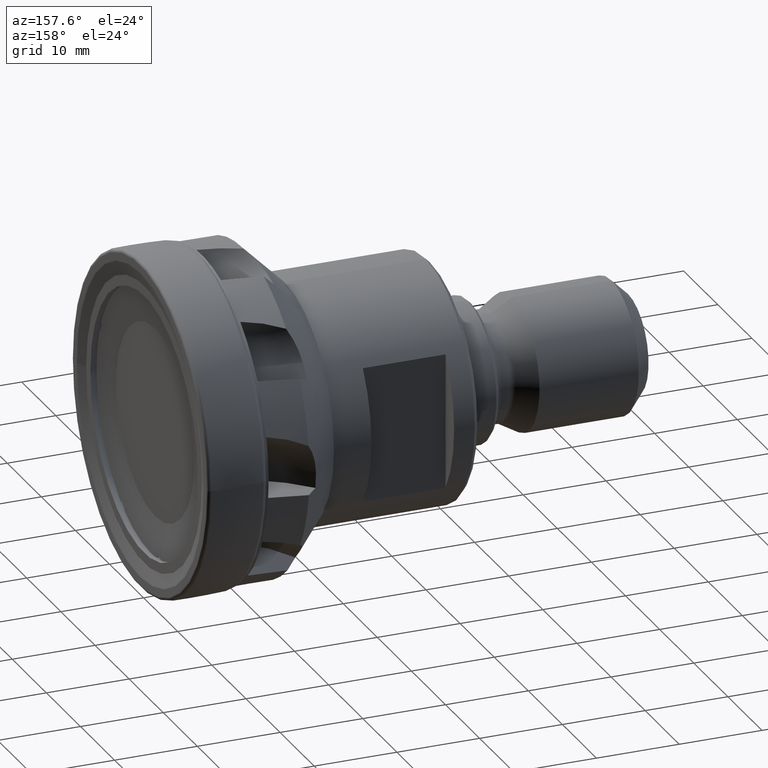
[diagram: clean part render]
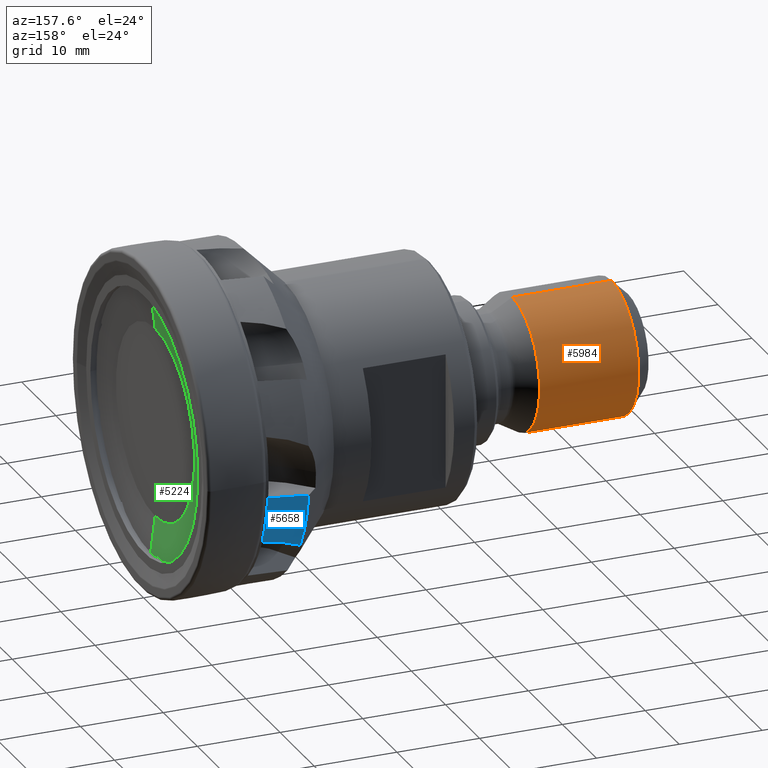
[diagram: same view with three faces highlighted in distinct colors, each labeled with its STEP entity id]
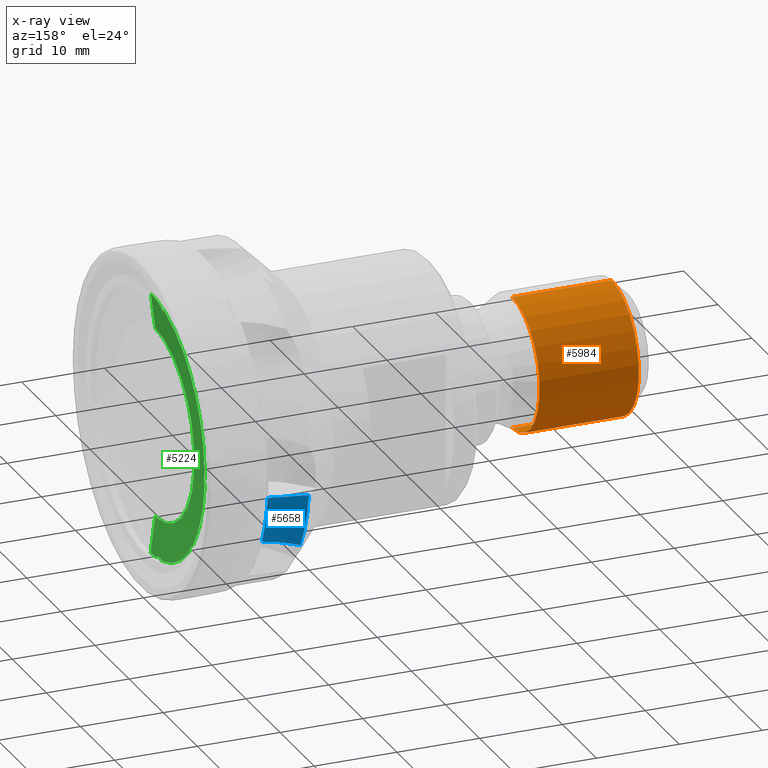
[diagram: x-ray of the same camera — body ghosted, the three highlighted faces saturated]
A machine part, auxiliary view with three faces highlighted in distinct colors.
The next image is the same camera in x-ray (body ghosted, the three faces saturated) — at least one of them is partly hidden behind the body in this view.
Their STEP definitions:

[orange] entity #5984 — the highlighted cylindrical surface (partial cylindrical patch) has radius 8 mm, axis along (1, -0, -0).
#39 = ORIENTED_EDGE ( 'NONE', *, *, #8100, .T. ) ;
#40 = ORIENTED_EDGE ( 'NONE', *, *, #8101, .T. ) ;
#41 = ORIENTED_EDGE ( 'NONE', *, *, #8098, .F. ) ;
#160 = CARTESIAN_POINT ( 'NONE',  ( -44.54999999999999700, 0.0000000000000000000, -7.999999998540237000 ) ) ;
#161 = CARTESIAN_POINT ( 'NONE',  ( -56.54999999999999700, 9.797174391391132700E-016, 7.999999998540237000 ) ) ;
#164 = CARTESIAN_POINT ( 'NONE',  ( -56.54999999999999700, 0.0000000000000000000, -7.999999998540237000 ) ) ;
#165 = CARTESIAN_POINT ( 'NONE',  ( -44.54999999999999700, 9.797174391391132700E-016, 7.999999998540237000 ) ) ;
#1861 = VERTEX_POINT ( 'NONE', #160 ) ;
#1862 = VERTEX_POINT ( 'NONE', #161 ) ;
#1865 = VERTEX_POINT ( 'NONE', #164 ) ;
#1866 = VERTEX_POINT ( 'NONE', #165 ) ;
#2932 = DIRECTION ( 'NONE',  ( 1.000000000000000000, -0.0000000000000000000, -0.0000000000000000000 ) ) ;
#2933 = CYLINDRICAL_SURFACE ( 'NONE', #7241, 7.999999998540237000 ) ;
#2934 = FACE_OUTER_BOUND ( 'NONE', #8983, .T. ) ;
#2935 = CARTESIAN_POINT ( 'NONE',  ( 0.0000000000000000000, 0.0000000000000000000, 0.0000000000000000000 ) ) ;
#2937 = DIRECTION ( 'NONE',  ( 0.0000000000000000000, 0.0000000000000000000, -1.000000000000000000 ) ) ;
#3941 = CIRCLE ( 'NONE', #3947, 7.999999998540237000 ) ;
#3947 = AXIS2_PLACEMENT_3D ( 'NONE', #4701, #4702, #4703 ) ;
#3948 = CIRCLE ( 'NONE', #3950, 7.999999998540237000 ) ;
#3950 = AXIS2_PLACEMENT_3D ( 'NONE', #4708, #4709, #4711 ) ;
#4700 = CARTESIAN_POINT ( 'NONE',  ( 0.0000000000000000000, 9.797174391391132700E-016, 7.999999998540237000 ) ) ;
#4701 = CARTESIAN_POINT ( 'NONE',  ( -44.54999999999999700, 0.0000000000000000000, 0.0000000000000000000 ) ) ;
#4702 = DIRECTION ( 'NONE',  ( 1.000000000000000000, -0.0000000000000000000, -0.0000000000000000000 ) ) ;
#4703 = DIRECTION ( 'NONE',  ( 0.0000000000000000000, 0.0000000000000000000, -1.000000000000000000 ) ) ;
#4707 = LINE ( 'NONE', #4700, #5952 ) ;
#4708 = CARTESIAN_POINT ( 'NONE',  ( -56.54999999999999700, 0.0000000000000000000, 0.0000000000000000000 ) ) ;
#4709 = DIRECTION ( 'NONE',  ( 1.000000000000000000, -0.0000000000000000000, -0.0000000000000000000 ) ) ;
#4711 = DIRECTION ( 'NONE',  ( 0.0000000000000000000, 0.0000000000000000000, -1.000000000000000000 ) ) ;
#4712 = DIRECTION ( 'NONE',  ( 1.000000000000000000, -0.0000000000000000000, -0.0000000000000000000 ) ) ;
#4713 = LINE ( 'NONE', #4714, #5947 ) ;
#4714 = CARTESIAN_POINT ( 'NONE',  ( 0.0000000000000000000, 0.0000000000000000000, -7.999999998540237000 ) ) ;
#4715 = DIRECTION ( 'NONE',  ( 1.000000000000000000, -0.0000000000000000000, -0.0000000000000000000 ) ) ;
#5947 = VECTOR ( 'NONE', #4715, 1000.000000000000000 ) ;
#5952 = VECTOR ( 'NONE', #4712, 1000.000000000000000 ) ;
#5984 = ADVANCED_FACE ( 'NONE', ( #2934 ), #2933, .T. ) ;
#7241 = AXIS2_PLACEMENT_3D ( 'NONE', #2935, #2932, #2937 ) ;
#8098 = EDGE_CURVE ( 'NONE', #1861, #1866, #3941, .T. ) ;
#8100 = EDGE_CURVE ( 'NONE', #1865, #1862, #3948, .T. ) ;
#8101 = EDGE_CURVE ( 'NONE', #1862, #1866, #4707, .T. ) ;
#8102 = EDGE_CURVE ( 'NONE', #1865, #1861, #4713, .T. ) ;
#8623 = ORIENTED_EDGE ( 'NONE', *, *, #8102, .F. ) ;
#8983 = EDGE_LOOP ( 'NONE', ( #39, #40, #41, #8623 ) ) ;

[blue] entity #5658 — the highlighted cylindrical surface (partial cylindrical patch) has radius 19.5275 mm, axis along (1, -0, -0).
#204 = CARTESIAN_POINT ( 'NONE',  ( -12.00000000000000200, 19.33435153484029100, -2.739727537040651800 ) ) ;
#206 = CARTESIAN_POINT ( 'NONE',  ( -11.99999999998959400, 16.83266850269608400, -9.898713417851306300 ) ) ;
#883 = CARTESIAN_POINT ( 'NONE',  ( -7.050000000000013100, 19.40054256912274900, -2.223106896587761400 ) ) ;
#931 = CARTESIAN_POINT ( 'NONE',  ( -6.999999999999954700, 17.67985840495561300, -8.291312503501501400 ) ) ;
#1136 = CARTESIAN_POINT ( 'NONE',  ( -7.050000000000013100, 19.40054256912274900, -2.223106896587761400 ) ) ;
#1140 = CARTESIAN_POINT ( 'NONE',  ( -8.698913747250538000, 19.38077625956980300, -2.395602933780084600 ) ) ;
#1141 = CARTESIAN_POINT ( 'NONE',  ( -10.34901157662200400, 19.35871127330852900, -2.567820024167877200 ) ) ;
#1142 = CARTESIAN_POINT ( 'NONE',  ( -12.00000000000000200, 19.33435153484029100, -2.739727537040651800 ) ) ;
#1146 = CARTESIAN_POINT ( 'NONE',  ( -6.999999999999997300, 19.40114124255417800, -2.217876176990967600 ) ) ;
#1152 = CARTESIAN_POINT ( 'NONE',  ( -7.016666530350089900, 19.40094191978930400, -2.219619777086357300 ) ) ;
#1153 = CARTESIAN_POINT ( 'NONE',  ( -7.033333197117723800, 19.40074236197761700, -2.221363350295899600 ) ) ;
#1154 = CARTESIAN_POINT ( 'NONE',  ( -7.050000000000013100, 19.40054256912274900, -2.223106896587761400 ) ) ;
#1364 = CARTESIAN_POINT ( 'NONE',  ( 0.0000000000000000000, 0.0000000000000000000, 0.0000000000000000000 ) ) ;
#1367 = DIRECTION ( 'NONE',  ( 1.000000000000000000, -0.0000000000000000000, -0.0000000000000000000 ) ) ;
#1370 = CYLINDRICAL_SURFACE ( 'NONE', #8403, 19.52749999999999600 ) ;
#1371 = FACE_OUTER_BOUND ( 'NONE', #3816, .T. ) ;
#1373 = DIRECTION ( 'NONE',  ( 0.0000000000000000000, 0.0000000000000000000, -1.000000000000000000 ) ) ;
#1593 = CIRCLE ( 'NONE', #1605, 19.52750000000000000 ) ;
#1605 = AXIS2_PLACEMENT_3D ( 'NONE', #7448, #7449, #7450 ) ;
#1905 = VERTEX_POINT ( 'NONE', #204 ) ;
#1907 = VERTEX_POINT ( 'NONE', #206 ) ;
#2105 = B_SPLINE_CURVE_WITH_KNOTS ( 'NONE', 3,
 ( #2373, #2374, #2379, #2380, #2381, #2382 ),
 .UNSPECIFIED., .F., .F.,
 ( 4, 2, 4 ),
 ( 2.273743267091686200E-007, 0.002634870149394642600, 0.005269512924462576400 ),
 .UNSPECIFIED. ) ;
#2107 = B_SPLINE_CURVE_WITH_KNOTS ( 'NONE', 3,
 ( #2384, #2392, #2396, #2397 ),
 .UNSPECIFIED., .F., .F.,
 ( 4, 4 ),
 ( 0.005269512924462576400, 0.005320139820006037700 ),
 .UNSPECIFIED. ) ;
#2373 = CARTESIAN_POINT ( 'NONE',  ( -11.99999999998959400, 16.83266850269608400, -9.898713417851306300 ) ) ;
#2374 = CARTESIAN_POINT ( 'NONE',  ( -11.22751372642457000, 17.05877552016504600, -9.514220574112132000 ) ) ;
#2379 = CARTESIAN_POINT ( 'NONE',  ( -10.42143498719523000, 17.22545872719503300, -9.202900436373994400 ) ) ;
#2380 = CARTESIAN_POINT ( 'NONE',  ( -8.766433850728413200, 17.49487069839472400, -8.679821660066631100 ) ) ;
#2381 = CARTESIAN_POINT ( 'NONE',  ( -7.916995190072015000, 17.59639688681898000, -8.469035079851112300 ) ) ;
#2382 = CARTESIAN_POINT ( 'NONE',  ( -7.050000000000012300, 17.67533371417064800, -8.300953821260685900 ) ) ;
#2384 = CARTESIAN_POINT ( 'NONE',  ( -7.050000000000012300, 17.67533371417064800, -8.300953821260685900 ) ) ;
#2392 = CARTESIAN_POINT ( 'NONE',  ( -7.033339952064824100, 17.67685055225980400, -8.297723997315923600 ) ) ;
#2396 = CARTESIAN_POINT ( 'NONE',  ( -7.016673280310648400, 17.67835876778601200, -8.294510232788210800 ) ) ;
#2397 = CARTESIAN_POINT ( 'NONE',  ( -6.999999999999954700, 17.67985840495561300, -8.291312503501501400 ) ) ;
#2699 = CARTESIAN_POINT ( 'NONE',  ( -12.00000000000000200, 0.0000000000000000000, 0.0000000000000000000 ) ) ;
#2700 = DIRECTION ( 'NONE',  ( 1.000000000000000000, -0.0000000000000000000, -0.0000000000000000000 ) ) ;
#2701 = DIRECTION ( 'NONE',  ( 0.0000000000000000000, 0.0000000000000000000, -1.000000000000000000 ) ) ;
#3555 = ORIENTED_EDGE ( 'NONE', *, *, #5371, .F. ) ;
#3556 = ORIENTED_EDGE ( 'NONE', *, *, #5374, .F. ) ;
#3557 = ORIENTED_EDGE ( 'NONE', *, *, #5187, .F. ) ;
#3558 = ORIENTED_EDGE ( 'NONE', *, *, #5304, .F. ) ;
#3559 = ORIENTED_EDGE ( 'NONE', *, *, #5301, .F. ) ;
#3560 = ORIENTED_EDGE ( 'NONE', *, *, #5759, .T. ) ;
#3816 = EDGE_LOOP ( 'NONE', ( #3555, #3556, #3557, #3558, #3559, #3560 ) ) ;
#4105 = CARTESIAN_POINT ( 'NONE',  ( -7.050000000000012300, 17.67533371417064800, -8.300953821260685900 ) ) ;
#4178 = CARTESIAN_POINT ( 'NONE',  ( -6.999999999999997300, 19.40114124255417800, -2.217876176990967600 ) ) ;
#5187 = EDGE_CURVE ( 'NONE', #9041, #9151, #1593, .T. ) ;
#5301 = EDGE_CURVE ( 'NONE', #1907, #9078, #2105, .T. ) ;
#5304 = EDGE_CURVE ( 'NONE', #9078, #9041, #2107, .T. ) ;
#5371 = EDGE_CURVE ( 'NONE', #8934, #1905, #8059, .T. ) ;
#5374 = EDGE_CURVE ( 'NONE', #9151, #8934, #8049, .T. ) ;
#5658 = ADVANCED_FACE ( 'NONE', ( #1371 ), #1370, .T. ) ;
#5759 = EDGE_CURVE ( 'NONE', #1907, #1905, #7081, .T. ) ;
#7080 = AXIS2_PLACEMENT_3D ( 'NONE', #2699, #2700, #2701 ) ;
#7081 = CIRCLE ( 'NONE', #7080, 19.52749999999999600 ) ;
#7448 = CARTESIAN_POINT ( 'NONE',  ( -7.000000000000002700, 0.0000000000000000000, 0.0000000000000000000 ) ) ;
#7449 = DIRECTION ( 'NONE',  ( 1.000000000000000000, -0.0000000000000000000, -0.0000000000000000000 ) ) ;
#7450 = DIRECTION ( 'NONE',  ( 0.0000000000000000000, 0.0000000000000000000, -1.000000000000000000 ) ) ;
#8049 =( BOUNDED_CURVE ( )  B_SPLINE_CURVE ( 3, ( #1146, #1152, #1153, #1154 ),
 .UNSPECIFIED., .F., .T. ) 
 B_SPLINE_CURVE_WITH_KNOTS ( ( 4, 4 ),
 ( 1.510086083071615000, 1.510355696091021200 ),
 .UNSPECIFIED. ) 
 CURVE ( )  GEOMETRIC_REPRESENTATION_ITEM ( )  RATIONAL_B_SPLINE_CURVE ( ( 1.000000000000000000, 0.9999999939424016900, 0.9999999939424016900, 1.000000000000000000 ) ) 
 REPRESENTATION_ITEM ( '' )  );
#8059 =( BOUNDED_CURVE ( )  B_SPLINE_CURVE ( 3, ( #1136, #1140, #1141, #1142 ),
 .UNSPECIFIED., .F., .T. ) 
 B_SPLINE_CURVE_WITH_KNOTS ( ( 4, 4 ),
 ( 1.510355696091021200, 1.537028804289249000 ),
 .UNSPECIFIED. ) 
 CURVE ( )  GEOMETRIC_REPRESENTATION_ITEM ( )  RATIONAL_B_SPLINE_CURVE ( ( 1.000000000000000000, 0.9999407129870121500, 0.9999407129870121500, 1.000000000000000000 ) ) 
 REPRESENTATION_ITEM ( '' )  );
#8403 = AXIS2_PLACEMENT_3D ( 'NONE', #1364, #1367, #1373 ) ;
#8934 = VERTEX_POINT ( 'NONE', #883 ) ;
#9041 = VERTEX_POINT ( 'NONE', #931 ) ;
#9078 = VERTEX_POINT ( 'NONE', #4105 ) ;
#9151 = VERTEX_POINT ( 'NONE', #4178 ) ;

[green] entity #5224 — the highlighted conical surface has half-angle 82.771 deg.
#616 = LINE ( 'NONE', #617, #6263 ) ;
#617 = CARTESIAN_POINT ( 'NONE',  ( -1.399999999999999900, 1.408343819019456200E-015, 11.50000000000000000 ) ) ;
#627 = DIRECTION ( 'NONE',  ( 0.1258414835689834800, 1.214911300582200800E-016, 0.9920503621354902500 ) ) ;
#784 = CARTESIAN_POINT ( 'NONE',  ( -0.8483136898999664700, 3.261176874428561400, -15.50998241542741600 ) ) ;
#786 = CARTESIAN_POINT ( 'NONE',  ( -0.8483136898999674700, 12.46783094578238900, -9.785091754325366200 ) ) ;
#804 = CARTESIAN_POINT ( 'NONE',  ( -0.8483136899133848500, 1.322591483166953600, -15.79384629853947100 ) ) ;
#809 = CARTESIAN_POINT ( 'NONE',  ( -0.8483136898999660300, 0.0000000000000000000, -15.84912707795528600 ) ) ;
#814 = CARTESIAN_POINT ( 'NONE',  ( -0.8483136899138111800, 15.78356788553458800, -1.440074281402794300 ) ) ;
#833 = CARTESIAN_POINT ( 'NONE',  ( -0.8483136898995968800, 11.16525256619874500, -11.24864277440465600 ) ) ;
#880 = CARTESIAN_POINT ( 'NONE',  ( -0.8557296515617844900, 15.76379660377353500, -0.9207630090637392000 ) ) ;
#881 = CARTESIAN_POINT ( 'NONE',  ( -0.8483136899125982600, 4.158984117643166600, 15.29371374919849600 ) ) ;
#884 = CARTESIAN_POINT ( 'NONE',  ( -0.8483136899118065600, 13.01657637641761400, 9.042320972522187400 ) ) ;
#886 = CARTESIAN_POINT ( 'NONE',  ( -0.8557296515617844900, 12.66762384446239400, 9.427427752001605700 ) ) ;
#888 = CARTESIAN_POINT ( 'NONE',  ( -0.8557296515617844900, 3.644129103370198600, 15.36442029371666800 ) ) ;
#895 = CARTESIAN_POINT ( 'NONE',  ( -0.8557296515617846000, 1.830580003344761200, -15.68419793089071100 ) ) ;
#942 = CARTESIAN_POINT ( 'NONE',  ( -0.8483136898999660300, 1.940958274529758200E-015, 15.84912707795528600 ) ) ;
#1038 = CARTESIAN_POINT ( 'NONE',  ( -0.8511403693666859100, 11.27147551924725200, -11.11181003528937500 ) ) ;
#1047 = CARTESIAN_POINT ( 'NONE',  ( -0.8536136881129781100, 11.37769591916652900, -10.97496865141187800 ) ) ;
#1051 = CARTESIAN_POINT ( 'NONE',  ( -0.8804928132325005000, 11.35577238275706900, -10.68945470854879100 ) ) ;
#1053 = CARTESIAN_POINT ( 'NONE',  ( -0.8483136898995968800, 11.16525256619874500, -11.24864277440465600 ) ) ;
#1055 = CARTESIAN_POINT ( 'NONE',  ( -0.8722389762066457000, 11.39848616835409200, -10.73900940498747200 ) ) ;
#1056 = CARTESIAN_POINT ( 'NONE',  ( -0.8557296515617847100, 11.48391373709465000, -10.83811852504718600 ) ) ;
#1060 = CARTESIAN_POINT ( 'NONE',  ( -0.8536136877931701500, 15.77039460119795700, -1.093871811361413200 ) ) ;
#1062 = CARTESIAN_POINT ( 'NONE',  ( -0.8511403689410053100, 15.77698500013689800, -1.266975549938483600 ) ) ;
#1064 = CARTESIAN_POINT ( 'NONE',  ( -0.8639845821700528100, 11.44119995312615500, -10.78856400936442300 ) ) ;
#1065 = CARTESIAN_POINT ( 'NONE',  ( -0.8557296515617847100, 11.48391373709465000, -10.83811852504718600 ) ) ;
#1066 = CARTESIAN_POINT ( 'NONE',  ( -0.8804928132325039500, 15.57007537209560000, -0.8892475933989312200 ) ) ;
#1067 = CARTESIAN_POINT ( 'NONE',  ( -0.8483136899138111800, 15.78356788553458800, -1.440074281402794300 ) ) ;
#1068 = CARTESIAN_POINT ( 'NONE',  ( -0.8722389762066469200, 15.63464917506933800, -0.8997528010916582300 ) ) ;
#1069 = CARTESIAN_POINT ( 'NONE',  ( -0.8557296515617844900, 15.76379660377353500, -0.9207630090637392000 ) ) ;
#1072 = CARTESIAN_POINT ( 'NONE',  ( -0.8722389762066467000, 12.55518607299904900, 9.360508138073457800 ) ) ;
#1074 = CARTESIAN_POINT ( 'NONE',  ( -0.8804928132325005000, 12.49896705271788600, 9.327048353588423900 ) ) ;
#1076 = CARTESIAN_POINT ( 'NONE',  ( -0.8639845821700531400, 15.69922291823498700, -0.9102579387912817000 ) ) ;
#1078 = CARTESIAN_POINT ( 'NONE',  ( -0.8557296515617844900, 15.76379660377353500, -0.9207630090637392000 ) ) ;
#1079 = CARTESIAN_POINT ( 'NONE',  ( -0.8511403692358463500, 12.90026786167074300, 9.170690910090336000 ) ) ;
#1081 = CARTESIAN_POINT ( 'NONE',  ( -0.8536136880147023900, 12.78395038479084700, 9.299059840379186400 ) ) ;
#1083 = CARTESIAN_POINT ( 'NONE',  ( -0.8483136898999660300, 0.0000000000000000000, 0.0000000000000000000 ) ) ;
#1085 = DIRECTION ( 'NONE',  ( 1.000000000000000000, 1.224646799147351200E-016, -0.0000000000000000000 ) ) ;
#1086 = DIRECTION ( 'NONE',  ( 1.231338420642963100E-016, -1.000000000000000000, 0.0000000000000000000 ) ) ;
#1087 = CARTESIAN_POINT ( 'NONE',  ( -0.8483136899118065600, 13.01657637641761400, 9.042320972522187400 ) ) ;
#1089 = CARTESIAN_POINT ( 'NONE',  ( -0.8557296515617844900, 12.66762384446239400, 9.427427752001605700 ) ) ;
#1090 = CARTESIAN_POINT ( 'NONE',  ( -0.8722389762066468100, 3.601011872022041400, 15.24088328897393800 ) ) ;
#1091 = CARTESIAN_POINT ( 'NONE',  ( -0.8804928132325009500, 3.579453138827825700, 15.17911471733577100 ) ) ;
#1092 = CARTESIAN_POINT ( 'NONE',  ( -0.8639845821700533600, 12.61140500247385400, 9.393967937732421400 ) ) ;
#1093 = CARTESIAN_POINT ( 'NONE',  ( -0.8557296515617844900, 12.66762384446239400, 9.427427752001605700 ) ) ;
#1095 = CARTESIAN_POINT ( 'NONE',  ( -0.8511403670558328500, 3.987372153260195800, 15.31728913617384300 ) ) ;
#1098 = CARTESIAN_POINT ( 'NONE',  ( -0.8536136953015902600, 3.815753115212944000, 15.34085810828734400 ) ) ;
#1099 = CARTESIAN_POINT ( 'NONE',  ( -0.8483136898999660300, 0.0000000000000000000, 0.0000000000000000000 ) ) ;
#1101 = DIRECTION ( 'NONE',  ( 1.000000000000000000, 1.224646799147351200E-016, -0.0000000000000000000 ) ) ;
#1103 = DIRECTION ( 'NONE',  ( 1.231338420642963100E-016, -1.000000000000000000, 0.0000000000000000000 ) ) ;
#1105 = CARTESIAN_POINT ( 'NONE',  ( -0.8483136899125982600, 4.158984117643166600, 15.29371374919849600 ) ) ;
#1107 = CARTESIAN_POINT ( 'NONE',  ( -0.8557296515617844900, 3.644129103370198600, 15.36442029371666800 ) ) ;
#1111 = CARTESIAN_POINT ( 'NONE',  ( -0.8639845821700528100, 3.622570525900938000, 15.30265181386680800 ) ) ;
#1112 = CARTESIAN_POINT ( 'NONE',  ( -0.8557296515617844900, 3.644129103370198600, 15.36442029371666800 ) ) ;
#1115 = CARTESIAN_POINT ( 'NONE',  ( -0.8483136898999660300, 0.0000000000000000000, 0.0000000000000000000 ) ) ;
#1116 = DIRECTION ( 'NONE',  ( 1.000000000000000000, 1.224646799147351200E-016, -0.0000000000000000000 ) ) ;
#1117 = DIRECTION ( 'NONE',  ( 1.231338420642963100E-016, -1.000000000000000000, -1.421085471520200400E-014 ) ) ;
#1543 = CONICAL_SURFACE ( 'NONE', #1566, 11.50000000000000000, 1.444620314489962300 ) ;
#1566 = AXIS2_PLACEMENT_3D ( 'NONE', #4398, #4400, #4397 ) ;
#2036 = B_SPLINE_CURVE_WITH_KNOTS ( 'NONE', 3,
 ( #1066, #1068, #1076, #1078 ),
 .UNSPECIFIED., .F., .F.,
 ( 4, 4 ),
 ( 0.0001817789926673907600, 0.0003796030336704790100 ),
 .UNSPECIFIED. ) ;
#2049 = B_SPLINE_CURVE_WITH_KNOTS ( 'NONE', 3,
 ( #1067, #1062, #1060, #1069 ),
 .UNSPECIFIED., .F., .F.,
 ( 4, 4 ),
 ( 0.001033642505590169100, 0.001553382792569341400 ),
 .UNSPECIFIED. ) ;
#2060 = B_SPLINE_CURVE_WITH_KNOTS ( 'NONE', 3,
 ( #1051, #1055, #1064, #1065 ),
 .UNSPECIFIED., .F., .F.,
 ( 4, 4 ),
 ( 8.603119556758594300E-006, 0.0002064271605391513300 ),
 .UNSPECIFIED. ) ;
#2068 = B_SPLINE_CURVE_WITH_KNOTS ( 'NONE', 3,
 ( #1053, #1038, #1047, #1056 ),
 .UNSPECIFIED., .F., .F.,
 ( 4, 4 ),
 ( 0.0008631329136633592300, 0.001382873225906880800 ),
 .UNSPECIFIED. ) ;
#2133 = B_SPLINE_CURVE_WITH_KNOTS ( 'NONE', 3,
 ( #1091, #1090, #1111, #1112 ),
 .UNSPECIFIED., .F., .F.,
 ( 4, 4 ),
 ( 0.0002380047067520831200, 0.0004358287477596864500 ),
 .UNSPECIFIED. ) ;
#2155 = B_SPLINE_CURVE_WITH_KNOTS ( 'NONE', 3,
 ( #1074, #1072, #1092, #1093 ),
 .UNSPECIFIED., .F., .F.,
 ( 4, 4 ),
 ( 3.185991407689044000E-005, 0.0002296839550626537500 ),
 .UNSPECIFIED. ) ;
#2160 = B_SPLINE_CURVE_WITH_KNOTS ( 'NONE', 3,
 ( #1087, #1079, #1081, #1089 ),
 .UNSPECIFIED., .F., .F.,
 ( 4, 4 ),
 ( 0.0009152272995187937800, 0.001434967604306945300 ),
 .UNSPECIFIED. ) ;
#2180 = B_SPLINE_CURVE_WITH_KNOTS ( 'NONE', 3,
 ( #1105, #1095, #1098, #1107 ),
 .UNSPECIFIED., .F., .F.,
 ( 4, 4 ),
 ( 0.0005231167508432350400, 0.001042857157631933000 ),
 .UNSPECIFIED. ) ;
#2348 = LINE ( 'NONE', #2352, #8390 ) ;
#2352 = CARTESIAN_POINT ( 'NONE',  ( -1.399999999999999900, 0.0000000000000000000, -11.50000000000000000 ) ) ;
#2353 = DIRECTION ( 'NONE',  ( 0.1258414835689834800, 0.0000000000000000000, -0.9920503621354902500 ) ) ;
#2574 = CARTESIAN_POINT ( 'NONE',  ( -0.8511403690011534200, 1.491917353499176500, -15.75730514190993500 ) ) ;
#2578 = CARTESIAN_POINT ( 'NONE',  ( -0.8722389762066465900, 1.828844803403210300, -15.55336415749447500 ) ) ;
#2582 = CARTESIAN_POINT ( 'NONE',  ( -0.8536136878383630000, 1.661246846572985500, -15.72075571718493200 ) ) ;
#2583 = CARTESIAN_POINT ( 'NONE',  ( -0.8804928132325013900, 1.827977290174598300, -15.48794716551259900 ) ) ;
#2584 = CARTESIAN_POINT ( 'NONE',  ( -1.399999999999999900, 0.0000000000000000000, 0.0000000000000000000 ) ) ;
#2585 = DIRECTION ( 'NONE',  ( 1.000000000000000000, -0.0000000000000000000, -0.0000000000000000000 ) ) ;
#2586 = DIRECTION ( 'NONE',  ( 0.0000000000000000000, 0.0000000000000000000, -1.000000000000000000 ) ) ;
#2587 = CARTESIAN_POINT ( 'NONE',  ( -0.8483136899133848500, 1.322591483166953600, -15.79384629853947100 ) ) ;
#2588 = CARTESIAN_POINT ( 'NONE',  ( -0.8557296515617846000, 1.830580003344761200, -15.68419793089071100 ) ) ;
#2589 = CARTESIAN_POINT ( 'NONE',  ( -0.8483136898999664700, 3.261176874428561400, -15.50998241542741600 ) ) ;
#2591 = CARTESIAN_POINT ( 'NONE',  ( -0.8617705755778276600, 2.783503679309526900, -15.50201466312970800 ) ) ;
#2592 = CARTESIAN_POINT ( 'NONE',  ( -0.8639845821700543600, 1.829712375176007800, -15.61878107842270100 ) ) ;
#2593 = CARTESIAN_POINT ( 'NONE',  ( -0.8557296515617846000, 1.830580003344761200, -15.68419793089071100 ) ) ;
#2594 = CARTESIAN_POINT ( 'NONE',  ( -0.8725393534494018100, 2.305770971033031600, -15.49469015706910600 ) ) ;
#2595 = CARTESIAN_POINT ( 'NONE',  ( -0.8804928132325013900, 1.827977290174598300, -15.48794716551259900 ) ) ;
#2646 = AXIS2_PLACEMENT_3D ( 'NONE', #7611, #7612, #7613 ) ;
#2980 = AXIS2_PLACEMENT_3D ( 'NONE', #7577, #7578, #7579 ) ;
#3874 = EDGE_LOOP ( 'NONE', ( #9200, #9242, #9227, #9210, #9224, #9231, #9202, #9215, #9195, #9189, #9193, #9222, #9183, #9230, #9194, #9185, #9191, #9213, #9203, #9221, #9190, #9199, #9188, #9226 ) ) ;
#4077 = CIRCLE ( 'NONE', #4079, 15.84912707795528200 ) ;
#4079 = AXIS2_PLACEMENT_3D ( 'NONE', #7539, #7540, #7541 ) ;
#4082 = CARTESIAN_POINT ( 'NONE',  ( -1.399999999999999900, 1.674651046774895300E-015, 11.50000000000000000 ) ) ;
#4089 = CARTESIAN_POINT ( 'NONE',  ( -1.399999999999999900, 0.0000000000000000000, -11.50000000000000000 ) ) ;
#4112 = CARTESIAN_POINT ( 'NONE',  ( -0.8483136898999673600, 11.80145034678783300, 10.57925322721205700 ) ) ;
#4113 = CARTESIAN_POINT ( 'NONE',  ( -0.8483136898999663600, 2.240222564718871800, 15.69000420629962100 ) ) ;
#4119 = CARTESIAN_POINT ( 'NONE',  ( -0.8804928132325005000, 12.49896705271788600, 9.327048353588423900 ) ) ;
#4146 = CARTESIAN_POINT ( 'NONE',  ( -0.8804928132325009500, 3.579453138827825700, 15.17911471733577100 ) ) ;
#4170 = CARTESIAN_POINT ( 'NONE',  ( -0.8557296515617847100, 11.48391373709465000, -10.83811852504718600 ) ) ;
#4172 = CARTESIAN_POINT ( 'NONE',  ( -0.8804928132325013900, 1.827977290174598300, -15.48794716551259900 ) ) ;
#4175 = CARTESIAN_POINT ( 'NONE',  ( -0.8804928132325039500, 15.57007537209560000, -0.8892475933989312200 ) ) ;
#4206 = CARTESIAN_POINT ( 'NONE',  ( -0.8483136898999679200, 15.84064835308956600, 0.5183520878092260400 ) ) ;
#4207 = CARTESIAN_POINT ( 'NONE',  ( -0.8804928132325005000, 11.35577238275706900, -10.68945470854879100 ) ) ;
#4397 = DIRECTION ( 'NONE',  ( 0.0000000000000000000, 0.0000000000000000000, -1.000000000000000000 ) ) ;
#4398 = CARTESIAN_POINT ( 'NONE',  ( -1.399999999999999900, 0.0000000000000000000, 0.0000000000000000000 ) ) ;
#4399 = FACE_OUTER_BOUND ( 'NONE', #3874, .T. ) ;
#4400 = DIRECTION ( 'NONE',  ( 1.000000000000000000, -0.0000000000000000000, -0.0000000000000000000 ) ) ;
#4639 = B_SPLINE_CURVE_WITH_KNOTS ( 'NONE', 3,
 ( #2587, #2574, #2582, #2588 ),
 .UNSPECIFIED., .F., .F.,
 ( 4, 4 ),
 ( 0.001009377819183448800, 0.001529118109905116800 ),
 .UNSPECIFIED. ) ;
#4710 = B_SPLINE_CURVE_WITH_KNOTS ( 'NONE', 3,
 ( #2583, #2578, #2592, #2593 ),
 .UNSPECIFIED., .F., .F.,
 ( 4, 4 ),
 ( 0.0001357592099274463600, 0.0003335832509260227800 ),
 .UNSPECIFIED. ) ;
#4739 = B_SPLINE_CURVE_WITH_KNOTS ( 'NONE', 3,
 ( #2589, #2591, #2594, #2595 ),
 .UNSPECIFIED., .F., .F.,
 ( 4, 4 ),
 ( 0.001440416747005862000, 0.002874136038886280300 ),
 .UNSPECIFIED. ) ;
#5156 = EDGE_CURVE ( 'NONE', #9086, #9119, #5821, .T. ) ;
#5160 = EDGE_CURVE ( 'NONE', #9085, #9092, #5803, .T. ) ;
#5165 = EDGE_CURVE ( 'NONE', #9179, #9148, #5797, .T. ) ;
#5169 = EDGE_CURVE ( 'NONE', #8557, #9180, #5817, .T. ) ;
#5224 = ADVANCED_FACE ( 'NONE', ( #4399 ), #1543, .F. ) ;
#5297 = EDGE_CURVE ( 'NONE', #9062, #8580, #2348, .T. ) ;
#5354 = EDGE_CURVE ( 'NONE', #8604, #9143, #2068, .T. ) ;
#5355 = EDGE_CURVE ( 'NONE', #9180, #9143, #2060, .T. ) ;
#5356 = EDGE_CURVE ( 'NONE', #8585, #8931, #2049, .T. ) ;
#5357 = EDGE_CURVE ( 'NONE', #9148, #8931, #2036, .T. ) ;
#5358 = EDGE_CURVE ( 'NONE', #9179, #8935, #8481, .T. ) ;
#5359 = EDGE_CURVE ( 'NONE', #8935, #8937, #2160, .T. ) ;
#5360 = EDGE_CURVE ( 'NONE', #9092, #8937, #2155, .T. ) ;
#5361 = EDGE_CURVE ( 'NONE', #9085, #8932, #8433, .T. ) ;
#5362 = EDGE_CURVE ( 'NONE', #8932, #8939, #2180, .T. ) ;
#5363 = EDGE_CURVE ( 'NONE', #9119, #8939, #2133, .T. ) ;
#5364 = EDGE_CURVE ( 'NONE', #9086, #9052, #8473, .T. ) ;
#5731 = EDGE_CURVE ( 'NONE', #9062, #9055, #7071, .T. ) ;
#5732 = EDGE_CURVE ( 'NONE', #8575, #8946, #4639, .T. ) ;
#5733 = EDGE_CURVE ( 'NONE', #9145, #8946, #4710, .T. ) ;
#5734 = EDGE_CURVE ( 'NONE', #8555, #9145, #4739, .T. ) ;
#5797 = B_SPLINE_CURVE_WITH_KNOTS ( 'NONE', 3,
 ( #7364, #7366, #7369, #7370 ),
 .UNSPECIFIED., .F., .F.,
 ( 4, 4 ),
 ( 0.0009181095392229997600, 0.002351839632982042700 ),
 .UNSPECIFIED. ) ;
#5803 = B_SPLINE_CURVE_WITH_KNOTS ( 'NONE', 3,
 ( #7317, #7343, #7348, #7349 ),
 .UNSPECIFIED., .F., .F.,
 ( 4, 4 ),
 ( 0.0006687796558108065800, 0.002102509501832129900 ),
 .UNSPECIFIED. ) ;
#5817 = B_SPLINE_CURVE_WITH_KNOTS ( 'NONE', 3,
 ( #7387, #7371, #7379, #7388 ),
 .UNSPECIFIED., .F., .F.,
 ( 4, 4 ),
 ( 0.0006049497416756343400, 0.002038679713011842100 ),
 .UNSPECIFIED. ) ;
#5821 = B_SPLINE_CURVE_WITH_KNOTS ( 'NONE', 3,
 ( #7286, #7310, #7315, #7316 ),
 .UNSPECIFIED., .F., .F.,
 ( 4, 4 ),
 ( 0.0006698594068958032600, 0.002103589529361275600 ),
 .UNSPECIFIED. ) ;
#5998 = EDGE_CURVE ( 'NONE', #8557, #8585, #4077, .T. ) ;
#6005 = EDGE_CURVE ( 'NONE', #8555, #8604, #7053, .T. ) ;
#6012 = EDGE_CURVE ( 'NONE', #8580, #8575, #7021, .T. ) ;
#6263 = VECTOR ( 'NONE', #627, 1000.000000000000000 ) ;
#7021 = CIRCLE ( 'NONE', #2646, 15.84912707795528200 ) ;
#7053 = CIRCLE ( 'NONE', #2980, 15.84912707795528200 ) ;
#7071 = CIRCLE ( 'NONE', #7085, 11.50000000000000000 ) ;
#7085 = AXIS2_PLACEMENT_3D ( 'NONE', #2584, #2585, #2586 ) ;
#7286 = CARTESIAN_POINT ( 'NONE',  ( -0.8483136898999663600, 2.240222564718871800, 15.69000420629962100 ) ) ;
#7310 = CARTESIAN_POINT ( 'NONE',  ( -0.8617702599069838600, 2.686352943995939900, 15.51914712165277900 ) ) ;
#7315 = CARTESIAN_POINT ( 'NONE',  ( -0.8725391643328157500, 3.132769560659906600, 15.34887015628293300 ) ) ;
#7316 = CARTESIAN_POINT ( 'NONE',  ( -0.8804928132325009500, 3.579453138827825700, 15.17911471733577100 ) ) ;
#7317 = CARTESIAN_POINT ( 'NONE',  ( -0.8483136898999673600, 11.80145034678783300, 10.57925322721205700 ) ) ;
#7343 = CARTESIAN_POINT ( 'NONE',  ( -0.8617702194065737200, 12.03338052965963500, 10.16160328385322700 ) ) ;
#7348 = CARTESIAN_POINT ( 'NONE',  ( -0.8725391400757148700, 12.26590356186528100, 9.744212506046544300 ) ) ;
#7349 = CARTESIAN_POINT ( 'NONE',  ( -0.8804928132325005000, 12.49896705271788600, 9.327048353588423900 ) ) ;
#7364 = CARTESIAN_POINT ( 'NONE',  ( -0.8483136898999679200, 15.84064835308956600, 0.5183520878092260400 ) ) ;
#7366 = CARTESIAN_POINT ( 'NONE',  ( -0.8617702871868949700, 15.74985651477808800, 0.04932945921953932300 ) ) ;
#7369 = CARTESIAN_POINT ( 'NONE',  ( -0.8725391806826807700, 15.65968587093656200, -0.4198733847215399600 ) ) ;
#7370 = CARTESIAN_POINT ( 'NONE',  ( -0.8804928132325039500, 15.57007537209560000, -0.8892475933989312200 ) ) ;
#7371 = CARTESIAN_POINT ( 'NONE',  ( -0.8617702318395970000, 12.09679995431072000, -10.08602282618183200 ) ) ;
#7379 = CARTESIAN_POINT ( 'NONE',  ( -0.8725391475198622800, 11.72612747727945500, -10.38749246356906900 ) ) ;
#7387 = CARTESIAN_POINT ( 'NONE',  ( -0.8483136898999674700, 12.46783094578238900, -9.785091754325366200 ) ) ;
#7388 = CARTESIAN_POINT ( 'NONE',  ( -0.8804928132325005000, 11.35577238275706900, -10.68945470854879100 ) ) ;
#7539 = CARTESIAN_POINT ( 'NONE',  ( -0.8483136898999660300, 0.0000000000000000000, 0.0000000000000000000 ) ) ;
#7540 = DIRECTION ( 'NONE',  ( 1.000000000000000000, 1.224646799147351200E-016, -0.0000000000000000000 ) ) ;
#7541 = DIRECTION ( 'NONE',  ( 1.231338420642963100E-016, -1.000000000000000000, 0.0000000000000000000 ) ) ;
#7577 = CARTESIAN_POINT ( 'NONE',  ( -0.8483136898999660300, 0.0000000000000000000, 0.0000000000000000000 ) ) ;
#7578 = DIRECTION ( 'NONE',  ( 1.000000000000000000, 1.224646799147351200E-016, -0.0000000000000000000 ) ) ;
#7579 = DIRECTION ( 'NONE',  ( 1.231338420642963100E-016, -1.000000000000000000, 8.881784197001252300E-016 ) ) ;
#7611 = CARTESIAN_POINT ( 'NONE',  ( -0.8483136898999660300, 0.0000000000000000000, 0.0000000000000000000 ) ) ;
#7612 = DIRECTION ( 'NONE',  ( 1.000000000000000000, 1.224646799147351200E-016, -0.0000000000000000000 ) ) ;
#7613 = DIRECTION ( 'NONE',  ( 1.231338420642963100E-016, -1.000000000000000000, 0.0000000000000000000 ) ) ;
#8349 = EDGE_CURVE ( 'NONE', #9055, #9052, #616, .T. ) ;
#8390 = VECTOR ( 'NONE', #2353, 1000.000000000000000 ) ;
#8400 = AXIS2_PLACEMENT_3D ( 'NONE', #1115, #1116, #1117 ) ;
#8410 = AXIS2_PLACEMENT_3D ( 'NONE', #1083, #1085, #1086 ) ;
#8416 = AXIS2_PLACEMENT_3D ( 'NONE', #1099, #1101, #1103 ) ;
#8433 = CIRCLE ( 'NONE', #8416, 15.84912707795528200 ) ;
#8473 = CIRCLE ( 'NONE', #8400, 15.84912707795528200 ) ;
#8481 = CIRCLE ( 'NONE', #8410, 15.84912707795528200 ) ;
#8555 = VERTEX_POINT ( 'NONE', #784 ) ;
#8557 = VERTEX_POINT ( 'NONE', #786 ) ;
#8575 = VERTEX_POINT ( 'NONE', #804 ) ;
#8580 = VERTEX_POINT ( 'NONE', #809 ) ;
#8585 = VERTEX_POINT ( 'NONE', #814 ) ;
#8604 = VERTEX_POINT ( 'NONE', #833 ) ;
#8931 = VERTEX_POINT ( 'NONE', #880 ) ;
#8932 = VERTEX_POINT ( 'NONE', #881 ) ;
#8935 = VERTEX_POINT ( 'NONE', #884 ) ;
#8937 = VERTEX_POINT ( 'NONE', #886 ) ;
#8939 = VERTEX_POINT ( 'NONE', #888 ) ;
#8946 = VERTEX_POINT ( 'NONE', #895 ) ;
#9052 = VERTEX_POINT ( 'NONE', #942 ) ;
#9055 = VERTEX_POINT ( 'NONE', #4082 ) ;
#9062 = VERTEX_POINT ( 'NONE', #4089 ) ;
#9085 = VERTEX_POINT ( 'NONE', #4112 ) ;
#9086 = VERTEX_POINT ( 'NONE', #4113 ) ;
#9092 = VERTEX_POINT ( 'NONE', #4119 ) ;
#9119 = VERTEX_POINT ( 'NONE', #4146 ) ;
#9143 = VERTEX_POINT ( 'NONE', #4170 ) ;
#9145 = VERTEX_POINT ( 'NONE', #4172 ) ;
#9148 = VERTEX_POINT ( 'NONE', #4175 ) ;
#9179 = VERTEX_POINT ( 'NONE', #4206 ) ;
#9180 = VERTEX_POINT ( 'NONE', #4207 ) ;
#9183 = ORIENTED_EDGE ( 'NONE', *, *, #5356, .T. ) ;
#9185 = ORIENTED_EDGE ( 'NONE', *, *, #5358, .T. ) ;
#9188 = ORIENTED_EDGE ( 'NONE', *, *, #5156, .F. ) ;
#9189 = ORIENTED_EDGE ( 'NONE', *, *, #5355, .F. ) ;
#9190 = ORIENTED_EDGE ( 'NONE', *, *, #5362, .T. ) ;
#9191 = ORIENTED_EDGE ( 'NONE', *, *, #5359, .T. ) ;
#9193 = ORIENTED_EDGE ( 'NONE', *, *, #5169, .F. ) ;
#9194 = ORIENTED_EDGE ( 'NONE', *, *, #5165, .F. ) ;
#9195 = ORIENTED_EDGE ( 'NONE', *, *, #5354, .T. ) ;
#9199 = ORIENTED_EDGE ( 'NONE', *, *, #5363, .F. ) ;
#9200 = ORIENTED_EDGE ( 'NONE', *, *, #8349, .F. ) ;
#9202 = ORIENTED_EDGE ( 'NONE', *, *, #5734, .F. ) ;
#9203 = ORIENTED_EDGE ( 'NONE', *, *, #5160, .F. ) ;
#9210 = ORIENTED_EDGE ( 'NONE', *, *, #6012, .T. ) ;
#9213 = ORIENTED_EDGE ( 'NONE', *, *, #5360, .F. ) ;
#9215 = ORIENTED_EDGE ( 'NONE', *, *, #6005, .T. ) ;
#9221 = ORIENTED_EDGE ( 'NONE', *, *, #5361, .T. ) ;
#9222 = ORIENTED_EDGE ( 'NONE', *, *, #5998, .T. ) ;
#9224 = ORIENTED_EDGE ( 'NONE', *, *, #5732, .T. ) ;
#9226 = ORIENTED_EDGE ( 'NONE', *, *, #5364, .T. ) ;
#9227 = ORIENTED_EDGE ( 'NONE', *, *, #5297, .T. ) ;
#9230 = ORIENTED_EDGE ( 'NONE', *, *, #5357, .F. ) ;
#9231 = ORIENTED_EDGE ( 'NONE', *, *, #5733, .F. ) ;
#9242 = ORIENTED_EDGE ( 'NONE', *, *, #5731, .F. ) ;